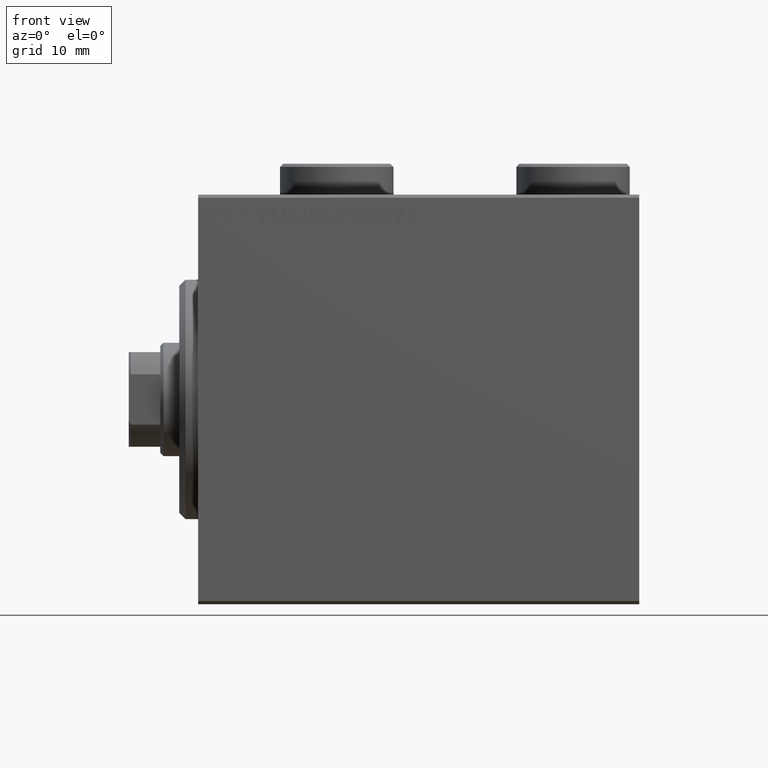
[diagram: clean part render]
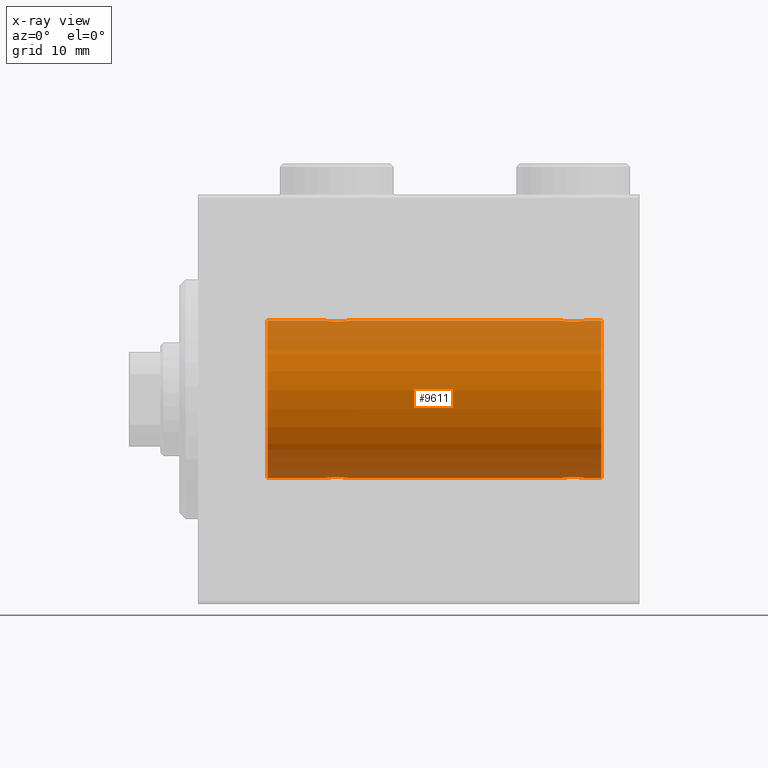
[diagram: x-ray — body ghosted, one internal face saturated and labeled with its STEP entity id]
A machine part, front view, then the same camera in x-ray: the body is ghosted and one INTERNAL B-rep face — a face not visible from any outside direction — is saturated and labeled: STEP entity #9611.
In plain terms, the highlighted cylindrical surface (partial cylindrical patch) has radius 12.5 mm, axis along (-1, -0, -0).
Its self-contained STEP definition (entity closure, byte-faithful):
#3 = CARTESIAN_POINT ( 'NONE',  ( 21.48038527642126283, -1.935716533151644825, 12.34923763528284724 ) ) ;
#47 = CARTESIAN_POINT ( 'NONE',  ( 19.99999999999999645, -7.265724481447607133E-23, 12.50000000000000000 ) ) ;
#192 = DIRECTION ( 'NONE',  ( -1.000000000000000000, -0.000000000000000000, -0.000000000000000000 ) ) ;
#217 = EDGE_CURVE ( 'NONE', #13933, #2851, #36215, .T. ) ;
#334 = CARTESIAN_POINT ( 'NONE',  ( 60.82116712851446749, -1.507135374967701003, 12.40915432986587419 ) ) ;
#358 = CARTESIAN_POINT ( 'NONE',  ( 22.64643896963591985, -1.897190184049187378, -12.35529285772521924 ) ) ;
#593 = CARTESIAN_POINT ( 'NONE',  ( 23.22027149897420628, -1.589951752150275732, -12.39868561261689273 ) ) ;
#638 = EDGE_LOOP ( 'NONE', ( #13644, #36103, #10724, #34977, #25020, #12170, #805, #28470, #28924, #13936, #40599, #6190 ) ) ;
#780 = CARTESIAN_POINT ( 'NONE',  ( 57.55255659427669457, -0.5247436444070353589, 12.49130933415156441 ) ) ;
#805 = ORIENTED_EDGE ( 'NONE', *, *, #17377, .T. ) ;
#946 = CARTESIAN_POINT ( 'NONE',  ( 10.99999999999999645, 1.530808498934191521E-15, -12.50000000000000000 ) ) ;
#1042 = CARTESIAN_POINT ( 'NONE',  ( 22.88874725797039389, -1.796480516834687347, -12.37033750336835247 ) ) ;
#1711 = CARTESIAN_POINT ( 'NONE',  ( 24.00000000000000000, 1.530808426277417854E-15, -12.50000000000000000 ) ) ;
#1808 = VERTEX_POINT ( 'NONE', #10398 ) ;
#1876 = CARTESIAN_POINT ( 'NONE',  ( 58.61383846120568109, -1.797736511708066143, -12.37015393445320655 ) ) ;
#2800 = CARTESIAN_POINT ( 'NONE',  ( 22.51693726697628151, -1.936441098420708773, 12.34912369794528608 ) ) ;
#2851 = VERTEX_POINT ( 'NONE', #40808 ) ;
#3057 = DIRECTION ( 'NONE',  ( -1.000000000000000000, 0.000000000000000000, 0.000000000000000000 ) ) ;
#3279 = CARTESIAN_POINT ( 'NONE',  ( 20.99654425923307954, -1.734959850168413587, 12.37922718965051061 ) ) ;
#3779 = CARTESIAN_POINT ( 'NONE',  ( 57.99277848532008051, -1.321088093821082721, 12.43033959299025426 ) ) ;
#3921 = CARTESIAN_POINT ( 'NONE',  ( 24.00000000000000000, -4.527848004210791175E-16, 12.50000000000000000 ) ) ;
#3953 = EDGE_CURVE ( 'NONE', #6191, #27730, #13133, .T. ) ;
#4245 = CARTESIAN_POINT ( 'NONE',  ( 59.36659749548705634, -1.999916920503820750, 12.33897614545467469 ) ) ;
#4267 = CARTESIAN_POINT ( 'NONE',  ( 24.00000000000000000, 1.530808426277417854E-15, -12.50000000000000000 ) ) ;
#5050 = CARTESIAN_POINT ( 'NONE',  ( 64.00000000000000000, 1.530808498934191521E-15, -12.50000000000000000 ) ) ;
#5087 = CARTESIAN_POINT ( 'NONE',  ( 58.85574721202270609, -1.897913903092051324, -12.35518060345725289 ) ) ;
#5381 = VECTOR ( 'NONE', #43578, 1000.000000000000000 ) ;
#5649 = EDGE_CURVE ( 'NONE', #2851, #24204, #18327, .T. ) ;
#5774 = CARTESIAN_POINT ( 'NONE',  ( 58.28145880458064454, -1.591305132013884238, -12.39851226212236313 ) ) ;
#6190 = ORIENTED_EDGE ( 'NONE', *, *, #43663, .F. ) ;
#6191 = VERTEX_POINT ( 'NONE', #25824 ) ;
#6215 = DIRECTION ( 'NONE',  ( -1.000000000000000000, -0.000000000000000000, -0.000000000000000000 ) ) ;
#6270 = VECTOR ( 'NONE', #6215, 1000.000000000000000 ) ;
#6717 = CARTESIAN_POINT ( 'NONE',  ( 20.67700056892266502, -1.505544071529935968, 12.40934942683853670 ) ) ;
#7232 = CARTESIAN_POINT ( 'NONE',  ( 60.38616153879433313, -1.797736511708064144, 12.37015393445320655 ) ) ;
#7256 = CARTESIAN_POINT ( 'NONE',  ( 21.48306273302371494, -1.936441098420706997, -12.34912369794528431 ) ) ;
#7617 = CARTESIAN_POINT ( 'NONE',  ( 20.49277848532005919, -1.321088093821079834, 12.43033959299025071 ) ) ;
#7675 = CARTESIAN_POINT ( 'NONE',  ( 58.85356103036409081, -1.897190184049188932, 12.35529285772521924 ) ) ;
#8268 = DIRECTION ( 'NONE',  ( -1.000000000000000000, -0.000000000000000000, -0.000000000000000000 ) ) ;
#8290 = VECTOR ( 'NONE', #8268, 1000.000000000000000 ) ;
#8777 = CARTESIAN_POINT ( 'NONE',  ( 59.76391373102438109, -1.986793270638201214, -12.34112317291865324 ) ) ;
#9464 = CARTESIAN_POINT ( 'NONE',  ( 60.82299943107732787, -1.505544071529934858, -12.40934942683853492 ) ) ;
#9611 = ADVANCED_FACE ( 'NONE', ( #15278 ), #22418, .F. ) ;
#9921 = CARTESIAN_POINT ( 'NONE',  ( 23.32116712851443907, -1.507135374967700558, 12.40915432986587064 ) ) ;
#10137 = CARTESIAN_POINT ( 'NONE',  ( 64.00000000000000000, 1.530808498934191521E-15, -12.50000000000000000 ) ) ;
#10398 = CARTESIAN_POINT ( 'NONE',  ( 64.00000000000000000, 0.000000000000000000, 12.50000000000000000 ) ) ;
#10415 = CARTESIAN_POINT ( 'NONE',  ( 64.00000000000000000, 0.000000000000000000, 0.000000000000000000 ) ) ;
#10722 = CARTESIAN_POINT ( 'NONE',  ( 21.11383846120566332, -1.797736511708062368, -12.37015393445320122 ) ) ;
#10724 = ORIENTED_EDGE ( 'NONE', *, *, #5649, .T. ) ;
#11146 = CARTESIAN_POINT ( 'NONE',  ( 58.61125274202960611, -1.796480516834688679, 12.37033750336835425 ) ) ;
#11532 = DIRECTION ( 'NONE',  ( -1.000000000000000000, -0.000000000000000000, -0.000000000000000000 ) ) ;
#11998 = CARTESIAN_POINT ( 'NONE',  ( 61.44744340572331254, -0.5247436444070329165, -12.49130933415156797 ) ) ;
#12170 = ORIENTED_EDGE ( 'NONE', *, *, #18533, .T. ) ;
#12445 = CARTESIAN_POINT ( 'NONE',  ( 57.55334320101621159, -0.5275951738695725535, -12.49118442338578561 ) ) ;
#12563 = CARTESIAN_POINT ( 'NONE',  ( 10.99999999999999645, 0.000000000000000000, 12.50000000000000000 ) ) ;
#13133 = LINE ( 'NONE', #20513, #6270 ) ;
#13644 = ORIENTED_EDGE ( 'NONE', *, *, #44963, .F. ) ;
#13933 = VERTEX_POINT ( 'NONE', #10137 ) ;
#13936 = ORIENTED_EDGE ( 'NONE', *, *, #3953, .F. ) ;
#14041 = CARTESIAN_POINT ( 'NONE',  ( 22.64425278797729391, -1.897913903092048438, 12.35518060345725111 ) ) ;
#14090 = CARTESIAN_POINT ( 'NONE',  ( 20.26436921980423023, -1.002396200863561404, 12.46022444231050841 ) ) ;
#14173 = CARTESIAN_POINT ( 'NONE',  ( 23.79785606468258052, -0.8858253204748003373, -12.46915613403960954 ) ) ;
#14386 = CARTESIAN_POINT ( 'NONE',  ( 61.09744774691021263, -1.231226695485369671, 12.44059298055987917 ) ) ;
#14604 = CARTESIAN_POINT ( 'NONE',  ( 58.17700056892267924, -1.505544071529938632, 12.40934942683853670 ) ) ;
#14822 = CARTESIAN_POINT ( 'NONE',  ( 58.27972850102579372, -1.589951752150273068, 12.39868561261688917 ) ) ;
#14848 = CARTESIAN_POINT ( 'NONE',  ( 21.86910032676576421, -2.000082296475566679, -12.33894933996983490 ) ) ;
#15034 = CARTESIAN_POINT ( 'NONE',  ( 57.50000000000000000, -7.533308568696040923E-15, -12.50000000000000000 ) ) ;
#15049 = CARTESIAN_POINT ( 'NONE',  ( 57.50000000000000000, -7.266434456262306043E-23, 12.50000000000000000 ) ) ;
#15076 = CARTESIAN_POINT ( 'NONE',  ( 22.13340250451295077, -1.999916920503817197, -12.33897614545467469 ) ) ;
#15278 = FACE_OUTER_BOUND ( 'NONE', #638, .T. ) ;
#15520 = VERTEX_POINT ( 'NONE', #946 ) ;
#15956 = DIRECTION ( 'NONE',  ( -1.000000000000000000, -0.000000000000000000, -0.000000000000000000 ) ) ;
#16140 = CARTESIAN_POINT ( 'NONE',  ( 58.49900207901491456, -1.736403706023276650, -12.37902502246767789 ) ) ;
#16365 = CARTESIAN_POINT ( 'NONE',  ( 19.99999999999999645, -3.213890523917628161E-15, -12.50000000000000000 ) ) ;
#16369 = CARTESIAN_POINT ( 'NONE',  ( 60.50345574076694533, -1.734959850168411366, -12.37922718965050883 ) ) ;
#16586 = VECTOR ( 'NONE', #192, 1000.000000000000000 ) ;
#16955 = EDGE_CURVE ( 'NONE', #40269, #27730, #18187, .T. ) ;
#17042 = CARTESIAN_POINT ( 'NONE',  ( 21.11125274202960256, -1.796480516834690233, 12.37033750336835958 ) ) ;
#17330 = DIRECTION ( 'NONE',  ( 0.000000000000000000, 0.000000000000000000, 1.000000000000000000 ) ) ;
#17377 = EDGE_CURVE ( 'NONE', #15520, #25336, #31825, .T. ) ;
#17513 = CARTESIAN_POINT ( 'NONE',  ( 21.73608626897565799, -1.986793270638199438, 12.34112317291865502 ) ) ;
#17633 = CARTESIAN_POINT ( 'NONE',  ( 23.73563078019576977, -1.002396200863559184, -12.46022444231050663 ) ) ;
#17696 = CARTESIAN_POINT ( 'NONE',  ( 64.00000000000000000, 1.530808498934191521E-15, -12.50000000000000000 ) ) ;
#17754 = CARTESIAN_POINT ( 'NONE',  ( 64.00000000000000000, 1.530808498934191521E-15, -12.50000000000000000 ) ) ;
#17837 = CARTESIAN_POINT ( 'NONE',  ( 59.76093497285608436, -1.987194304939078116, 12.34105826212746138 ) ) ;
#18107 = CARTESIAN_POINT ( 'NONE',  ( 21.73906502714393341, -1.987194304939077671, -12.34105826212746138 ) ) ;
#18187 = B_SPLINE_CURVE_WITH_KNOTS ( 'NONE', 3,
 ( #47, #27933, #24928, #39007, #14090, #39237, #7617, #6717, #20788, #3279, #17042, #34624, #3, #17513, #27892, #41959, #31598, #2800, #14041, #23745, #38508, #38286, #9921, #28116, #20743, #31141, #35309, #21208 ),
 .UNSPECIFIED., .F., .F.,
 ( 4, 2, 2, 2, 2, 2, 2, 2, 2, 2, 2, 2, 2, 4 ),
 ( 0.006262980370572172363, 0.007045658964677369886, 0.007436998261729971249, 0.007828337558782571745, 0.008219676855835172241, 0.008611016152887774472, 0.009002355449940373233, 0.009393694746992975464, 0.009785034044045575960, 0.01017637334109817646, 0.01056771263815077869, 0.01095905193520337918, 0.01174173052930858538, 0.01252440912341379504 ),
 .UNSPECIFIED. ) ;
#18227 = LINE ( 'NONE', #5050, #8290 ) ;
#18324 = CARTESIAN_POINT ( 'NONE',  ( 23.32299943107732432, -1.505544071529935080, -12.40934942683853848 ) ) ;
#18327 = B_SPLINE_CURVE_WITH_KNOTS ( 'NONE', 3,
 ( #29537, #18476, #11998, #26063, #40148, #41066, #43822, #9464, #26302, #16369, #33720, #24366, #33480, #8777, #30225, #37393, #33242, #20063, #5087, #1876, #16140, #5774, #36925, #26998, #19836, #12445, #26517, #37612 ),
 .UNSPECIFIED., .F., .F.,
 ( 4, 2, 2, 2, 2, 2, 2, 2, 2, 2, 2, 2, 2, 4 ),
 ( 0.006262980370572173230, 0.007045658964677369018, 0.007436998261729971249, 0.007828337558782573480, 0.008219676855835175711, 0.008611016152887777941, 0.009002355449940380172, 0.009393694746992982403, 0.009785034044045584634, 0.01017637334109818686, 0.01056771263815078910, 0.01095905193520339133, 0.01174173052930859579, 0.01252440912341380025 ),
 .UNSPECIFIED. ) ;
#18476 = CARTESIAN_POINT ( 'NONE',  ( 61.50000000000000711, -0.2612140938986743932, -12.50000000000000000 ) ) ;
#18533 = EDGE_CURVE ( 'NONE', #39971, #15520, #18227, .T. ) ;
#19350 = LINE ( 'NONE', #25379, #5381 ) ;
#19396 = CIRCLE ( 'NONE', #25303, 12.50000000000000000 ) ;
#19780 = CARTESIAN_POINT ( 'NONE',  ( 19.99999999999999645, -7.265724481447607133E-23, 12.50000000000000000 ) ) ;
#19836 = CARTESIAN_POINT ( 'NONE',  ( 57.75337863379106551, -1.008535157355846090, -12.46157701909767290 ) ) ;
#20063 = CARTESIAN_POINT ( 'NONE',  ( 58.98306273302370784, -1.936441098420709883, -12.34912369794528786 ) ) ;
#20513 = CARTESIAN_POINT ( 'NONE',  ( 64.00000000000000000, 0.000000000000000000, 12.50000000000000000 ) ) ;
#20743 = CARTESIAN_POINT ( 'NONE',  ( 23.74662136620892383, -1.008535157355842538, 12.46157701909767646 ) ) ;
#20788 = CARTESIAN_POINT ( 'NONE',  ( 20.77972850102578661, -1.589951752150277287, 12.39868561261688917 ) ) ;
#21162 = AXIS2_PLACEMENT_3D ( 'NONE', #25874, #15956, #40636 ) ;
#21208 = CARTESIAN_POINT ( 'NONE',  ( 24.00000000000000000, -4.527848004210791175E-16, 12.50000000000000000 ) ) ;
#21300 = CARTESIAN_POINT ( 'NONE',  ( 59.23608626897564733, -1.986793270638198106, 12.34112317291865146 ) ) ;
#21548 = CARTESIAN_POINT ( 'NONE',  ( 21.35574721202270254, -1.897913903092047327, -12.35518060345725289 ) ) ;
#22184 = CARTESIAN_POINT ( 'NONE',  ( 57.70214393531741592, -0.8858253204748025578, 12.46915613403960954 ) ) ;
#22418 = CYLINDRICAL_SURFACE ( 'NONE', #21162, 12.50000000000000000 ) ;
#23745 = CARTESIAN_POINT ( 'NONE',  ( 22.88616153879432602, -1.797736511708064144, 12.37015393445320299 ) ) ;
#24204 = VERTEX_POINT ( 'NONE', #15034 ) ;
#24366 = CARTESIAN_POINT ( 'NONE',  ( 60.14643896963591629, -1.897190184049190043, -12.35529285772521391 ) ) ;
#24791 = CARTESIAN_POINT ( 'NONE',  ( 24.00000000000000711, -0.2612140938986747818, -12.50000000000000533 ) ) ;
#24928 = CARTESIAN_POINT ( 'NONE',  ( 20.05255659427670167, -0.5247436444070346928, 12.49130933415156619 ) ) ;
#25008 = CARTESIAN_POINT ( 'NONE',  ( 20.05334320101619738, -0.5275951738695662252, -12.49118442338578561 ) ) ;
#25020 = ORIENTED_EDGE ( 'NONE', *, *, #29062, .T. ) ;
#25302 = VECTOR ( 'NONE', #11532, 1000.000000000000000 ) ;
#25303 = AXIS2_PLACEMENT_3D ( 'NONE', #10415, #3057, #17330 ) ;
#25336 = VERTEX_POINT ( 'NONE', #12563 ) ;
#25379 = CARTESIAN_POINT ( 'NONE',  ( 64.00000000000000000, 0.000000000000000000, 12.50000000000000000 ) ) ;
#25657 = CARTESIAN_POINT ( 'NONE',  ( 57.76436921980423733, -1.002396200863562736, 12.46022444231050663 ) ) ;
#25680 = CARTESIAN_POINT ( 'NONE',  ( 22.51961472357873717, -1.935716533151642826, -12.34923763528285257 ) ) ;
#25824 = CARTESIAN_POINT ( 'NONE',  ( 57.50000000000000000, -7.266434456262306043E-23, 12.50000000000000000 ) ) ;
#25851 = VECTOR ( 'NONE', #39424, 1000.000000000000000 ) ;
#25874 = CARTESIAN_POINT ( 'NONE',  ( 64.00000000000000000, 0.000000000000000000, 0.000000000000000000 ) ) ;
#26007 = EDGE_CURVE ( 'NONE', #24204, #34044, #39148, .T. ) ;
#26063 = CARTESIAN_POINT ( 'NONE',  ( 61.29785606468259118, -0.8858253204748017806, -12.46915613403961309 ) ) ;
#26176 = CARTESIAN_POINT ( 'NONE',  ( 61.50000000000000711, -7.215738317004035941E-16, 12.50000000000000000 ) ) ;
#26302 = CARTESIAN_POINT ( 'NONE',  ( 60.72027149897421339, -1.589951752150274844, -12.39868561261689273 ) ) ;
#26517 = CARTESIAN_POINT ( 'NONE',  ( 57.50000000000000000, -0.2646816682749856819, -12.50000000000000711 ) ) ;
#26998 = CARTESIAN_POINT ( 'NONE',  ( 57.90255225308975895, -1.231226695485371669, -12.44059298055988094 ) ) ;
#27730 = VERTEX_POINT ( 'NONE', #3921 ) ;
#27892 = CARTESIAN_POINT ( 'NONE',  ( 21.86659749548704212, -1.999916920503820306, 12.33897614545467647 ) ) ;
#27933 = CARTESIAN_POINT ( 'NONE',  ( 19.99999999999999289, -0.2612140938986765581, 12.50000000000000000 ) ) ;
#28116 = CARTESIAN_POINT ( 'NONE',  ( 23.59744774691023039, -1.231226695485369893, 12.44059298055988272 ) ) ;
#28240 = CARTESIAN_POINT ( 'NONE',  ( 23.58981090228289546, -1.220538259806347225, -12.44075068685997287 ) ) ;
#28450 = CARTESIAN_POINT ( 'NONE',  ( 61.24662136620892028, -1.008535157355842760, 12.46157701909767468 ) ) ;
#28470 = ORIENTED_EDGE ( 'NONE', *, *, #33446, .F. ) ;
#28924 = ORIENTED_EDGE ( 'NONE', *, *, #16955, .T. ) ;
#29062 = EDGE_CURVE ( 'NONE', #34044, #39971, #34179, .T. ) ;
#29162 = CARTESIAN_POINT ( 'NONE',  ( 20.99900207901491811, -1.736403706023270654, -12.37902502246767966 ) ) ;
#29537 = CARTESIAN_POINT ( 'NONE',  ( 61.50000000000000711, 1.530808426270318106E-15, -12.50000000000000000 ) ) ;
#30225 = CARTESIAN_POINT ( 'NONE',  ( 59.63340250451296498, -1.999916920503821194, -12.33897614545467825 ) ) ;
#30693 = CARTESIAN_POINT ( 'NONE',  ( 61.44665679898378130, -0.5275951738695680016, 12.49118442338578205 ) ) ;
#30965 = CARTESIAN_POINT ( 'NONE',  ( 10.99999999999999645, 0.000000000000000000, 0.000000000000000000 ) ) ;
#31141 = CARTESIAN_POINT ( 'NONE',  ( 23.94665679898380617, -0.5275951738695671134, 12.49118442338578561 ) ) ;
#31598 = CARTESIAN_POINT ( 'NONE',  ( 22.26093497285607370, -1.987194304939079448, 12.34105826212746138 ) ) ;
#31693 = CARTESIAN_POINT ( 'NONE',  ( 58.98038527642127349, -1.935716533151643493, 12.34923763528284901 ) ) ;
#31719 = CARTESIAN_POINT ( 'NONE',  ( 23.00345574076691335, -1.734959850168410256, -12.37922718965050528 ) ) ;
#31825 = CIRCLE ( 'NONE', #42873, 12.50000000000000000 ) ;
#31920 = CARTESIAN_POINT ( 'NONE',  ( 60.71854119541938388, -1.591305132013881796, 12.39851226212235957 ) ) ;
#32186 = CARTESIAN_POINT ( 'NONE',  ( 23.50722151467992660, -1.321088093821078502, -12.43033959299025248 ) ) ;
#32380 = CARTESIAN_POINT ( 'NONE',  ( 57.50000000000001421, -0.2612140938986763361, 12.50000000000000355 ) ) ;
#32404 = CARTESIAN_POINT ( 'NONE',  ( 20.67883287148555382, -1.507135374967699670, -12.40915432986587064 ) ) ;
#32623 = CARTESIAN_POINT ( 'NONE',  ( 22.26391373102435622, -1.986793270638196551, -12.34112317291864791 ) ) ;
#33242 = CARTESIAN_POINT ( 'NONE',  ( 59.23906502714393696, -1.987194304939080336, -12.34105826212745960 ) ) ;
#33446 = EDGE_CURVE ( 'NONE', #40269, #25336, #39646, .T. ) ;
#33480 = CARTESIAN_POINT ( 'NONE',  ( 60.01961472357874783, -1.935716533151644381, -12.34923763528284724 ) ) ;
#33720 = CARTESIAN_POINT ( 'NONE',  ( 60.38874725797041521, -1.796480516834690455, -12.37033750336835780 ) ) ;
#34044 = VERTEX_POINT ( 'NONE', #1711 ) ;
#34179 = B_SPLINE_CURVE_WITH_KNOTS ( 'NONE', 3,
 ( #4267, #24791, #42317, #14173, #17633, #28240, #32186, #18324, #593, #31719, #1042, #358, #25680, #32623, #15076, #14848, #18107, #7256, #21548, #10722, #29162, #38874, #32404, #39764, #42764, #25008, #42994, #43224 ),
 .UNSPECIFIED., .F., .F.,
 ( 4, 2, 2, 2, 2, 2, 2, 2, 2, 2, 2, 2, 2, 4 ),
 ( 0.006262980370572176700, 0.007045658964677373355, 0.007436998261729973851, 0.007828337558782575215, 0.008219676855835175711, 0.008611016152887776207, 0.009002355449940376703, 0.009393694746992977199, 0.009785034044045577695, 0.01017637334109817646, 0.01056771263815077869, 0.01095905193520337745, 0.01174173052930858711, 0.01252440912341379504 ),
 .UNSPECIFIED. ) ;
#34624 = CARTESIAN_POINT ( 'NONE',  ( 21.35356103036408371, -1.897190184049189599, 12.35529285772521391 ) ) ;
#34977 = ORIENTED_EDGE ( 'NONE', *, *, #26007, .T. ) ;
#35309 = CARTESIAN_POINT ( 'NONE',  ( 24.00000000000000000, -0.2646816682749787430, 12.50000000000000178 ) ) ;
#35398 = CARTESIAN_POINT ( 'NONE',  ( 60.50099792098509255, -1.736403706023274651, 12.37902502246767966 ) ) ;
#36103 = ORIENTED_EDGE ( 'NONE', *, *, #217, .T. ) ;
#36215 = LINE ( 'NONE', #17754, #25302 ) ;
#36925 = CARTESIAN_POINT ( 'NONE',  ( 58.17883287148557514, -1.507135374967702557, -12.40915432986587241 ) ) ;
#37393 = CARTESIAN_POINT ( 'NONE',  ( 59.36910032676577487, -2.000082296475570232, -12.33894933996983312 ) ) ;
#37612 = CARTESIAN_POINT ( 'NONE',  ( 57.50000000000000000, -7.533308568696040923E-15, -12.50000000000000000 ) ) ;
#38286 = CARTESIAN_POINT ( 'NONE',  ( 23.21854119541938033, -1.591305132013879131, 12.39851226212235957 ) ) ;
#38508 = CARTESIAN_POINT ( 'NONE',  ( 23.00099792098508189, -1.736403706023272431, 12.37902502246767966 ) ) ;
#38585 = EDGE_CURVE ( 'NONE', #6191, #39100, #40235, .T. ) ;
#38848 = CARTESIAN_POINT ( 'NONE',  ( 60.14425278797731522, -1.897913903092049548, 12.35518060345725289 ) ) ;
#38874 = CARTESIAN_POINT ( 'NONE',  ( 20.78145880458060901, -1.591305132013878021, -12.39851226212236313 ) ) ;
#39007 = CARTESIAN_POINT ( 'NONE',  ( 20.20214393531741237, -0.8858253204748024467, 12.46915613403961309 ) ) ;
#39100 = VERTEX_POINT ( 'NONE', #26176 ) ;
#39148 = LINE ( 'NONE', #17696, #16586 ) ;
#39237 = CARTESIAN_POINT ( 'NONE',  ( 20.41018909771710454, -1.220538259806349446, 12.44075068685996932 ) ) ;
#39295 = CARTESIAN_POINT ( 'NONE',  ( 57.91018909771712231, -1.220538259806350112, 12.44075068685996932 ) ) ;
#39424 = DIRECTION ( 'NONE',  ( -1.000000000000000000, -0.000000000000000000, -0.000000000000000000 ) ) ;
#39646 = LINE ( 'NONE', #39854, #25851 ) ;
#39740 = CARTESIAN_POINT ( 'NONE',  ( 59.63089967323423934, -2.000082296475567567, 12.33894933996983134 ) ) ;
#39764 = CARTESIAN_POINT ( 'NONE',  ( 20.40255225308977671, -1.231226695485369893, -12.44059298055988627 ) ) ;
#39854 = CARTESIAN_POINT ( 'NONE',  ( 64.00000000000000000, 0.000000000000000000, 12.50000000000000000 ) ) ;
#39971 = VERTEX_POINT ( 'NONE', #16365 ) ;
#40148 = CARTESIAN_POINT ( 'NONE',  ( 61.23563078019578398, -1.002396200863560738, -12.46022444231050841 ) ) ;
#40235 = B_SPLINE_CURVE_WITH_KNOTS ( 'NONE', 3,
 ( #15049, #32380, #780, #22184, #25657, #39295, #3779, #14604, #14822, #42737, #11146, #7675, #31693, #21300, #4245, #39740, #17837, #42290, #38848, #7232, #35398, #31920, #334, #14386, #28450, #30693, #41280, #43418 ),
 .UNSPECIFIED., .F., .F.,
 ( 4, 2, 2, 2, 2, 2, 2, 2, 2, 2, 2, 2, 2, 4 ),
 ( 0.006262980370572174098, 0.007045658964677370753, 0.007436998261729972984, 0.007828337558782575215, 0.008219676855835175711, 0.008611016152887777941, 0.009002355449940380172, 0.009393694746992982403, 0.009785034044045584634, 0.01017637334109818686, 0.01056771263815078910, 0.01095905193520338959, 0.01174173052930859232, 0.01252440912341379678 ),
 .UNSPECIFIED. ) ;
#40269 = VERTEX_POINT ( 'NONE', #19780 ) ;
#40599 = ORIENTED_EDGE ( 'NONE', *, *, #38585, .T. ) ;
#40636 = DIRECTION ( 'NONE',  ( 0.000000000000000000, 0.000000000000000000, 1.000000000000000000 ) ) ;
#40808 = CARTESIAN_POINT ( 'NONE',  ( 61.50000000000000711, 1.530808426270318106E-15, -12.50000000000000000 ) ) ;
#41066 = CARTESIAN_POINT ( 'NONE',  ( 61.08981090228289901, -1.220538259806349446, -12.44075068685996932 ) ) ;
#41280 = CARTESIAN_POINT ( 'NONE',  ( 61.50000000000000000, -0.2646816682749791316, 12.50000000000000000 ) ) ;
#41959 = CARTESIAN_POINT ( 'NONE',  ( 22.13089967323422869, -2.000082296475568011, 12.33894933996983134 ) ) ;
#42290 = CARTESIAN_POINT ( 'NONE',  ( 60.01693726697627085, -1.936441098420706775, 12.34912369794528608 ) ) ;
#42317 = CARTESIAN_POINT ( 'NONE',  ( 23.94744340572329833, -0.5247436444070328054, -12.49130933415156619 ) ) ;
#42737 = CARTESIAN_POINT ( 'NONE',  ( 58.49654425923307599, -1.734959850168409812, 12.37922718965050706 ) ) ;
#42764 = CARTESIAN_POINT ( 'NONE',  ( 20.25337863379106551, -1.008535157355840761, -12.46157701909767646 ) ) ;
#42873 = AXIS2_PLACEMENT_3D ( 'NONE', #30965, #45003, #44315 ) ;
#42994 = CARTESIAN_POINT ( 'NONE',  ( 20.00000000000000000, -0.2646816682749822958, -12.50000000000000000 ) ) ;
#43224 = CARTESIAN_POINT ( 'NONE',  ( 19.99999999999999645, -3.213890523917628161E-15, -12.50000000000000000 ) ) ;
#43418 = CARTESIAN_POINT ( 'NONE',  ( 61.50000000000000711, -7.215738317004035941E-16, 12.50000000000000000 ) ) ;
#43578 = DIRECTION ( 'NONE',  ( -1.000000000000000000, -0.000000000000000000, -0.000000000000000000 ) ) ;
#43663 = EDGE_CURVE ( 'NONE', #1808, #39100, #19350, .T. ) ;
#43822 = CARTESIAN_POINT ( 'NONE',  ( 61.00722151467995502, -1.321088093821077614, -12.43033959299025248 ) ) ;
#44315 = DIRECTION ( 'NONE',  ( 0.000000000000000000, 0.000000000000000000, 1.000000000000000000 ) ) ;
#44963 = EDGE_CURVE ( 'NONE', #13933, #1808, #19396, .T. ) ;
#45003 = DIRECTION ( 'NONE',  ( -1.000000000000000000, 0.000000000000000000, 0.000000000000000000 ) ) ;